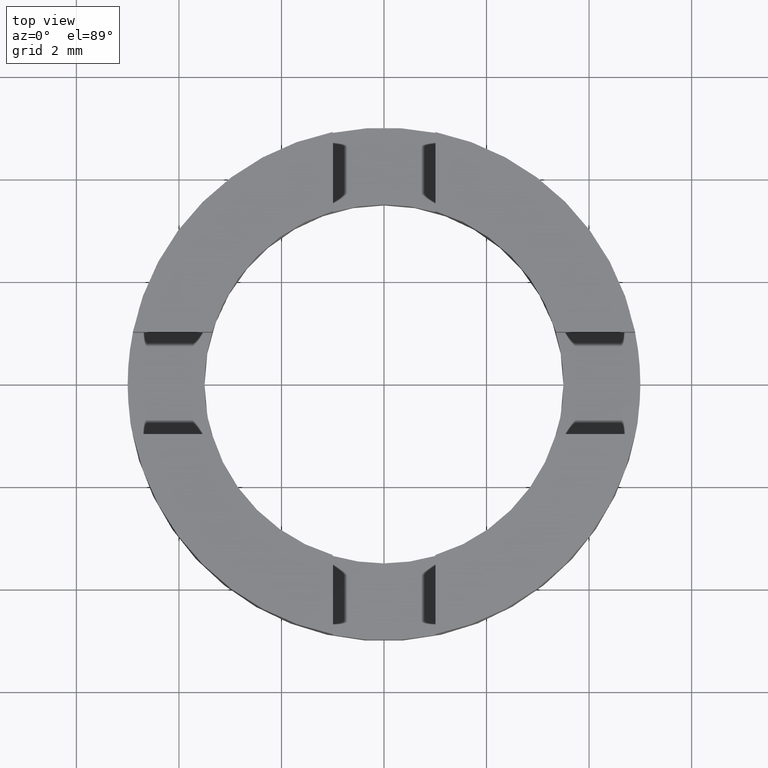
[diagram: clean part render]
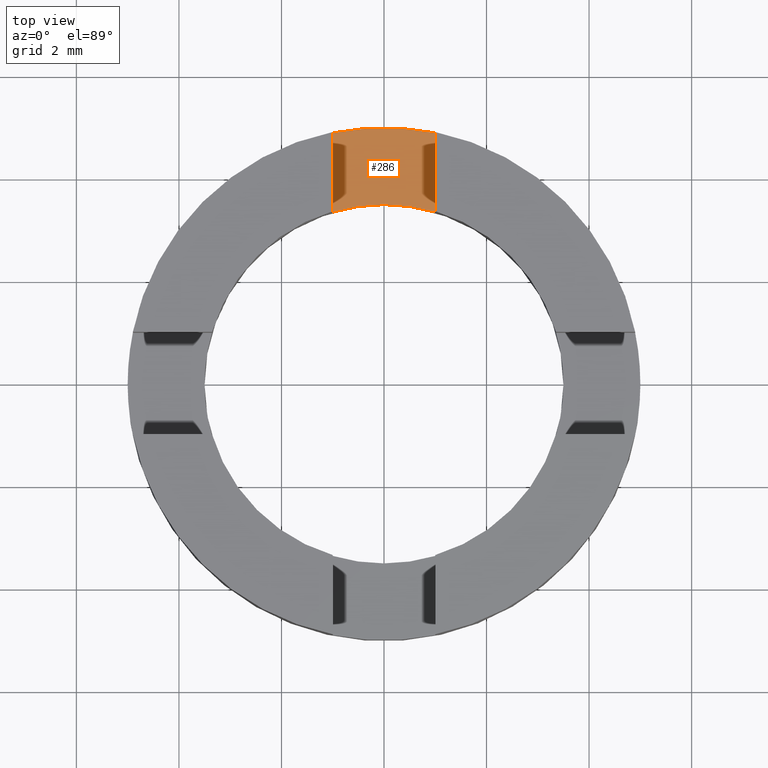
[diagram: same view with one face highlighted and labeled with its STEP entity id]
A machine part, top view. The second image highlights one B-rep face of the part: STEP entity #286.
In plain terms, the highlighted planar face has unit normal (0, -0, 1).
Its self-contained STEP definition (entity closure, byte-faithful):
#59 = CARTESIAN_POINT ( 'NONE',  ( 0.000000000000000000, 0.000000000000000000, 1.000000000000000000 ) ) ;
#72 = EDGE_CURVE ( 'NONE', #594, #405, #117, .T. ) ;
#93 = DIRECTION ( 'NONE',  ( 1.000000000000000000, 0.000000000000000000, 0.000000000000000000 ) ) ;
#94 = CARTESIAN_POINT ( 'NONE',  ( 1.000000000000000000, 4.898979485566356651, 1.000000000000000000 ) ) ;
#104 = CARTESIAN_POINT ( 'NONE',  ( 0.000000000000000000, 0.000000000000000000, 1.000000000000000000 ) ) ;
#117 = LINE ( 'NONE', #616, #568 ) ;
#160 = VECTOR ( 'NONE', #246, 1000.000000000000000 ) ;
#170 = AXIS2_PLACEMENT_3D ( 'NONE', #59, #238, #242 ) ;
#221 = ORIENTED_EDGE ( 'NONE', *, *, #72, .T. ) ;
#231 = DIRECTION ( 'NONE',  ( 1.000000000000000000, 0.000000000000000000, 0.000000000000000000 ) ) ;
#238 = DIRECTION ( 'NONE',  ( 0.000000000000000000, -0.000000000000000000, 1.000000000000000000 ) ) ;
#242 = DIRECTION ( 'NONE',  ( 1.000000000000000000, 0.000000000000000000, -0.000000000000000000 ) ) ;
#246 = DIRECTION ( 'NONE',  ( 0.000000000000000000, 1.000000000000000000, 0.000000000000000000 ) ) ;
#286 = ADVANCED_FACE ( 'NONE', ( #475 ), #778, .T. ) ;
#308 = AXIS2_PLACEMENT_3D ( 'NONE', #448, #640, #93 ) ;
#314 = ORIENTED_EDGE ( 'NONE', *, *, #621, .T. ) ;
#333 = CIRCLE ( 'NONE', #642, 3.500000000000000000 ) ;
#350 = ORIENTED_EDGE ( 'NONE', *, *, #464, .F. ) ;
#405 = VERTEX_POINT ( 'NONE', #515 ) ;
#448 = CARTESIAN_POINT ( 'NONE',  ( 0.000000000000000000, 0.000000000000000000, 1.000000000000000000 ) ) ;
#464 = EDGE_CURVE ( 'NONE', #636, #405, #333, .T. ) ;
#475 = FACE_OUTER_BOUND ( 'NONE', #689, .T. ) ;
#482 = DIRECTION ( 'NONE',  ( 0.000000000000000000, -0.000000000000000000, 1.000000000000000000 ) ) ;
#493 = DIRECTION ( 'NONE',  ( -0.000000000000000000, -1.000000000000000000, -0.000000000000000000 ) ) ;
#497 = CARTESIAN_POINT ( 'NONE',  ( 1.000000000000000000, 3.354101966249684708, 1.000000000000000000 ) ) ;
#515 = CARTESIAN_POINT ( 'NONE',  ( -1.000000000000000000, 3.354101966249684708, 1.000000000000000000 ) ) ;
#563 = LINE ( 'NONE', #686, #160 ) ;
#566 = ORIENTED_EDGE ( 'NONE', *, *, #739, .T. ) ;
#568 = VECTOR ( 'NONE', #493, 1000.000000000000000 ) ;
#594 = VERTEX_POINT ( 'NONE', #735 ) ;
#616 = CARTESIAN_POINT ( 'NONE',  ( -1.000000000000000000, 3.305037895305897422, 1.000000000000000000 ) ) ;
#621 = EDGE_CURVE ( 'NONE', #636, #742, #563, .T. ) ;
#636 = VERTEX_POINT ( 'NONE', #497 ) ;
#640 = DIRECTION ( 'NONE',  ( 0.000000000000000000, -0.000000000000000000, 1.000000000000000000 ) ) ;
#642 = AXIS2_PLACEMENT_3D ( 'NONE', #104, #482, #231 ) ;
#686 = CARTESIAN_POINT ( 'NONE',  ( 1.000000000000000000, 3.305037895305898310, 1.000000000000000000 ) ) ;
#689 = EDGE_LOOP ( 'NONE', ( #566, #221, #350, #314 ) ) ;
#702 = CIRCLE ( 'NONE', #308, 5.000000000000000000 ) ;
#735 = CARTESIAN_POINT ( 'NONE',  ( -1.000000000000000000, 4.898979485566356651, 1.000000000000000000 ) ) ;
#739 = EDGE_CURVE ( 'NONE', #742, #594, #702, .T. ) ;
#742 = VERTEX_POINT ( 'NONE', #94 ) ;
#778 = PLANE ( 'NONE',  #170 ) ;